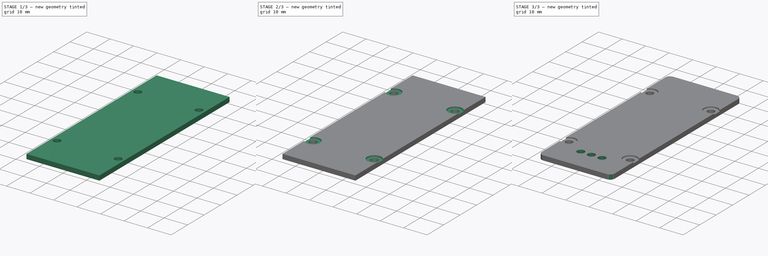
[diagram: build sequence overview — one tinted view per stage of 3, left to right]
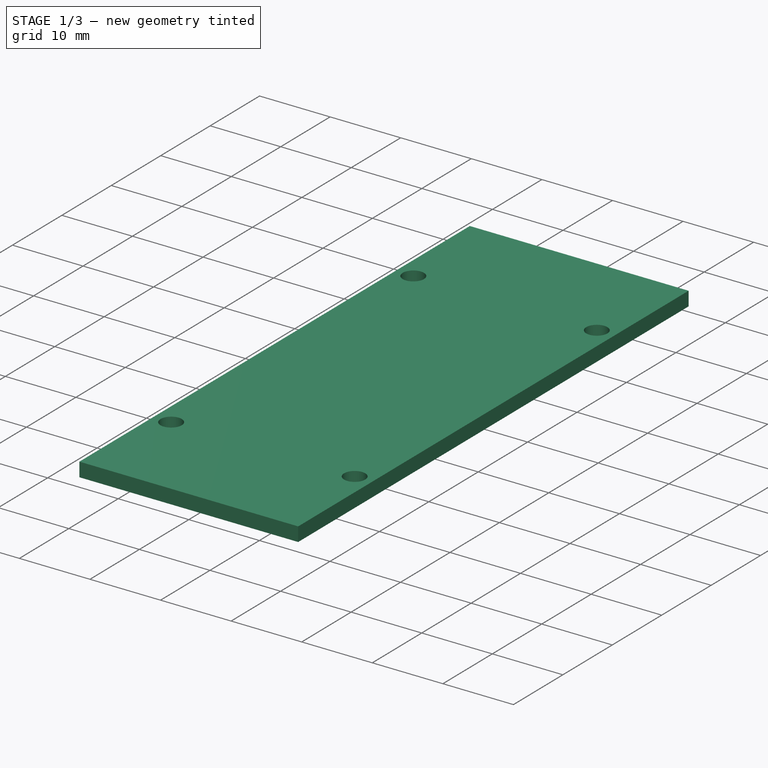
[diagram: stage 1 of 3 — iso view after this stage's code; geometry added in this stage tinted green]
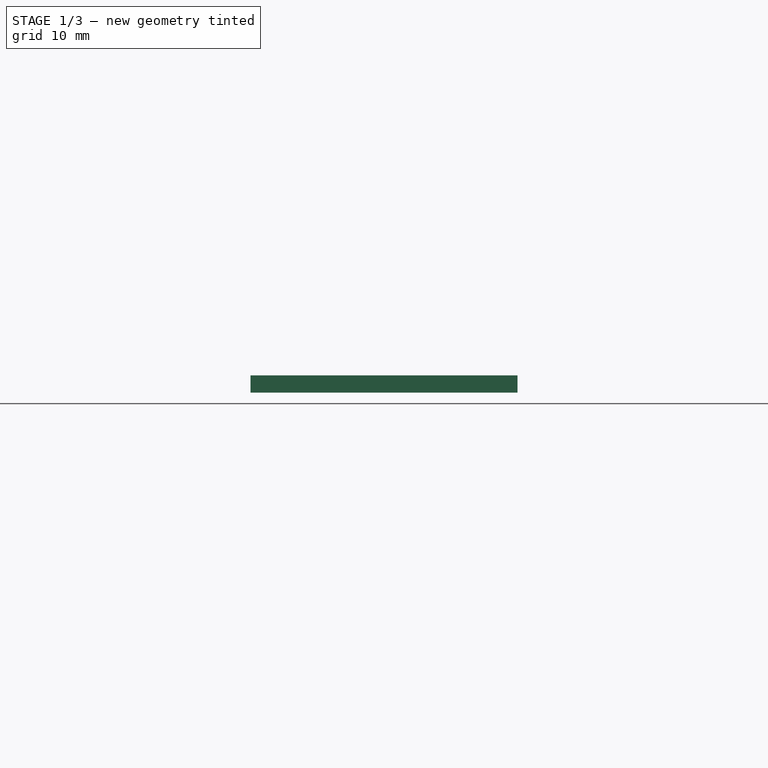
[diagram: stage 1 of 3 — front view after this stage's code; geometry added in this stage tinted green]
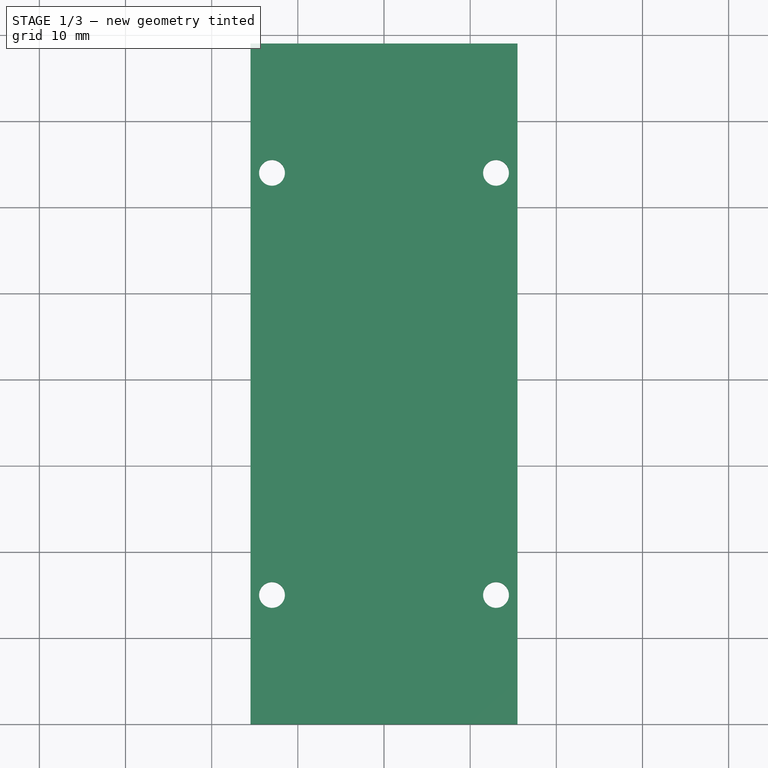
[diagram: stage 1 of 3 — top view after this stage's code; geometry added in this stage tinted green]
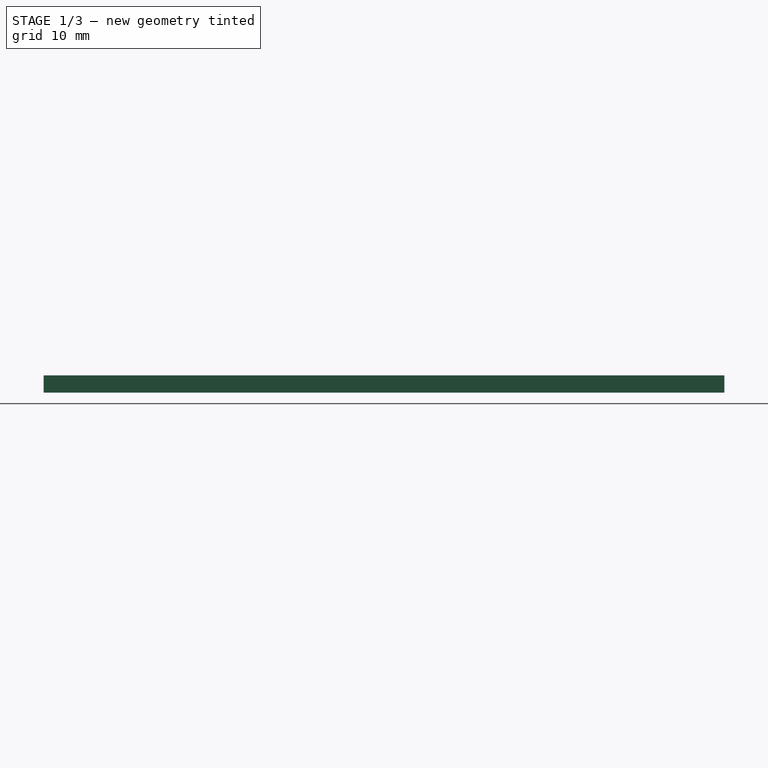
[diagram: stage 1 of 3 — right view after this stage's code; geometry added in this stage tinted green]
FCSTD DOCUMENT  (FreeCAD 0.18R13661 (Git))
Label: Top
License: All rights reserved
LicenseURL: http://en.wikipedia.org/wiki/All_rights_reserved
objects: Sketcher::SketchObject×4, PartDesign::Pocket×3, PartDesign::Pad×1, PartDesign::Plane×1, PartDesign::Fillet×1, PartDesign::Body×1
note: 15 computed .brp shape members not serialized (recipe doc carries the construction recipe); baked Part::Feature solids carry a one-line shape summary decoded from their .brp

FEATURE [Sketcher::SketchObject] Sketch  label="BaseSketch"
  MapMode = 5
  Support = -> [XY_Plane]
  sketch-geometry (14):
    g0: LineSegment StartX=0 StartY=0 StartZ=0 EndX=15.5 EndY=0 EndZ=0
    g1: LineSegment StartX=0 StartY=0 StartZ=0 EndX=-15.5 EndY=0 EndZ=0
    g2: LineSegment StartX=-15.5 StartY=0 StartZ=0 EndX=-15.5 EndY=39.5 EndZ=0
    g3: LineSegment StartX=-15.5 StartY=39.5 StartZ=0 EndX=-15.5 EndY=79 EndZ=0
    g4: LineSegment StartX=-15.5 StartY=79 StartZ=0 EndX=0 EndY=79 EndZ=0
    g5: LineSegment StartX=0 StartY=79 StartZ=0 EndX=15.5 EndY=79 EndZ=0
    g6: LineSegment StartX=15.5 StartY=79 StartZ=0 EndX=15.5 EndY=39.5 EndZ=0
    g7: LineSegment StartX=15.5 StartY=39.5 StartZ=0 EndX=15.5 EndY=0 EndZ=0
    g8: LineSegment [constr] StartX=-13.5 StartY=77 StartZ=0 EndX=13.5 EndY=77 EndZ=0
    g9: LineSegment [constr] StartX=13.5 StartY=77 StartZ=0 EndX=13.5 EndY=2 EndZ=0
    g10: LineSegment [constr] StartX=13.5 StartY=2 StartZ=0 EndX=-13.5 EndY=2 EndZ=0
    g11: LineSegment [constr] StartX=-13.5 StartY=2 StartZ=0 EndX=-13.5 EndY=77 EndZ=0
    g12: LineSegment [constr] StartX=-13.5 StartY=77 StartZ=0 EndX=-15.5 EndY=77 EndZ=0
    g13: LineSegment [constr] StartX=13.5 StartY=77 StartZ=0 EndX=15.5 EndY=77 EndZ=0
  constraints (41):
    c: Coincident(g0,g-1)
    c: Coincident(g1,g-1)
    c: Equal(g1,g0)
    c: Parallel(g0,g1)
    c: Horizontal(g0)
    c: Coincident(g2,g1)
    c: Perpendicular(g1,g2)
    c: Coincident(g3,g2)
    c: Equal(g3,g2)
    c: Parallel(g3,g2)
    c: Coincident(g4,g3)
    c: Coincident(g5,g4)
    c: Coincident(g6,g5)
    c: Coincident(g7,g6)
    c: Coincident(g7,g0)
    c: Equal(g4,g5)
    c: Equal(g7,g6)
    c: Parallel(g4,g5)
    c: Perpendicular(g3,g4)
    c: Parallel(g6,g7)
    c: Perpendicular(g6,g5)
    c: Coincident(g8,g9)
    c: Coincident(g9,g10)
    c: Coincident(g10,g11)
    c: Coincident(g11,g8)
    c: Parallel(g11,g3)
    c: Parallel(g8,g4)
    c: Parallel(g9,g6)
    c: Parallel(g1,g10)
    c: Coincident(g12,g8)
    c: PointOnObject(g12,g3)
    c: Coincident(g13,g8)
    c: PointOnObject(g13,g6)
    c: Distance(g12) = 2
    c: Distance(g3,g12) = 2
    c: Parallel(g12,g8)
    c: Equal(g12,g13)
    c: Parallel(g12,g13)
    c: Distance(g10) = 27
    c: Distance(g11) = 75
    c: Distance(g10,g1) = 2
FEATURE [PartDesign::Pad] Pad  label="BasePad"
  Length = 2
  Length2 = 100
  Profile = -> Sketch
  Type = 0
FEATURE [PartDesign::Plane] DatumPlane  label="SkrewsHolePlane"
  MapMode = 6
  Placement = pos=(0,0,2) rot=(0,0,1;3.14159rad)
  Support = -> [Pad]
FEATURE [Sketcher::SketchObject] Sketch001  label="ScrewsHoleSketch"
  ExternalGeometry = -> [Pad]
  MapMode = 5
  Placement = pos=(0,0,2) rot=(0,0,1;3.14159rad)
  Support = -> [DatumPlane]
  sketch-geometry (8):
    g0: LineSegment [constr] StartX=-15.5 StartY=-15 StartZ=0 EndX=-13 EndY=-15 EndZ=0
    g1: LineSegment [constr] StartX=15.5 StartY=-15 StartZ=0 EndX=13 EndY=-15 EndZ=0
    g2: Circle CenterX=-13 CenterY=-15 CenterZ=0 NormalX=0 NormalY=0 NormalZ=1 AngleXU=0 Radius=1.5
    g3: Circle CenterX=13 CenterY=-15 CenterZ=0 NormalX=0 NormalY=0 NormalZ=1 AngleXU=0 Radius=1.5
    g4: LineSegment [constr] StartX=-15.5 StartY=-64 StartZ=0 EndX=-13 EndY=-64 EndZ=0
    g5: LineSegment [constr] StartX=15.5 StartY=-64 StartZ=0 EndX=13 EndY=-64 EndZ=0
    g6: Circle CenterX=-13 CenterY=-64 CenterZ=0 NormalX=0 NormalY=0 NormalZ=1 AngleXU=0 Radius=1.5
    g7: Circle CenterX=13 CenterY=-64 CenterZ=0 NormalX=0 NormalY=0 NormalZ=1 AngleXU=0 Radius=1.5
  constraints (24):
    c: Equal(g0,g1)
    c: Perpendicular(g-6,g0)
    c: Parallel(g0,g1)
    c: Distance(g0) = 2.5
    c: Coincident(g2,g0)
    c: Coincident(g3,g1)
    c: Equal(g2,g3)
    c: Radius(g2) = 1.5
    c: PointOnObject(g0,g-6)
    c: PointOnObject(g1,g-3)
    c: Distance(g0,g-6) = 15
    c: Distance(g1,g-3) = 15
    c: PointOnObject(g4,g-5)
    c: PointOnObject(g5,g-4)
    c: Equal(g4,g5)
    c: Perpendicular(g-5,g4)
    c: Parallel(g4,g5)
    c: Distance(g4,g-5) = 15
    c: Distance(g5,g-4) = 15
    c: Distance(g4) = 2.5
    c: Coincident(g6,g4)
    c: Coincident(g7,g5)
    c: Equal(g6,g7)
    c: Radius(g6) = 1.5
FEATURE [PartDesign::Pocket] Pocket  label="ScrewsHolePocket"
  BaseFeature = -> Pad
  Length = 5
  Length2 = 100
  Profile = -> Sketch001
  Type = 1
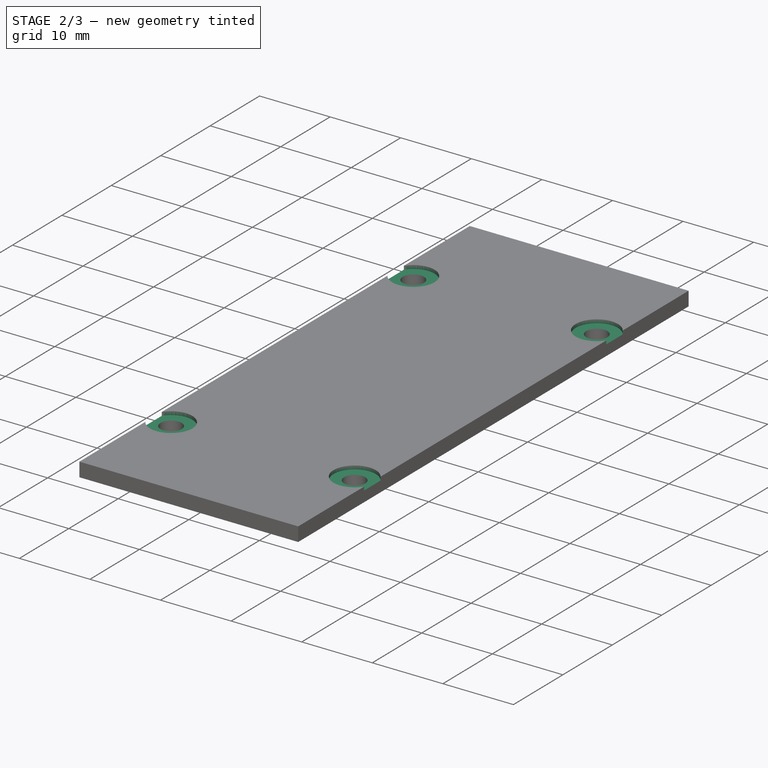
[diagram: stage 2 of 3 — iso view after this stage's code; geometry added in this stage tinted green]
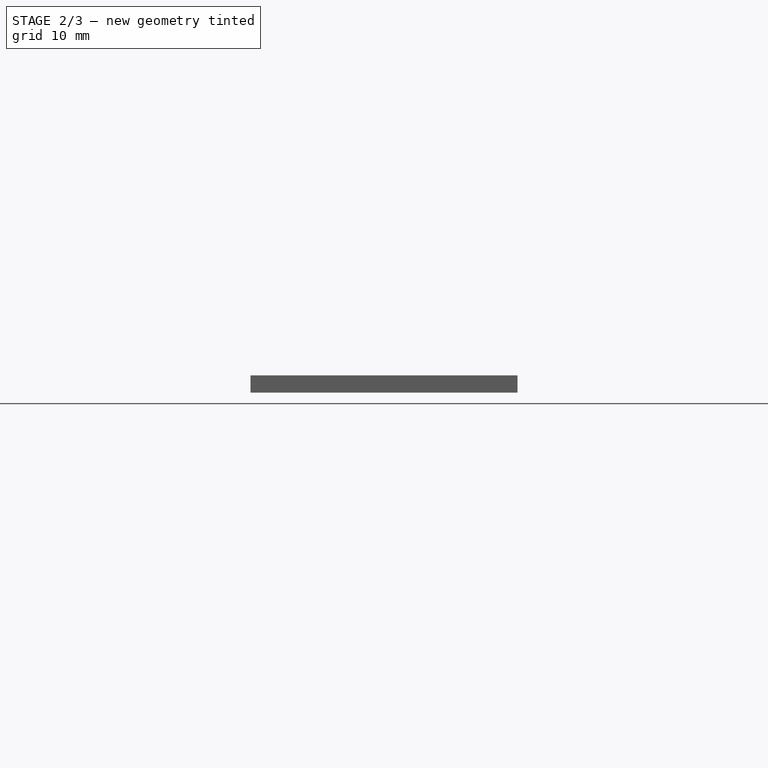
[diagram: stage 2 of 3 — front view after this stage's code; geometry added in this stage tinted green]
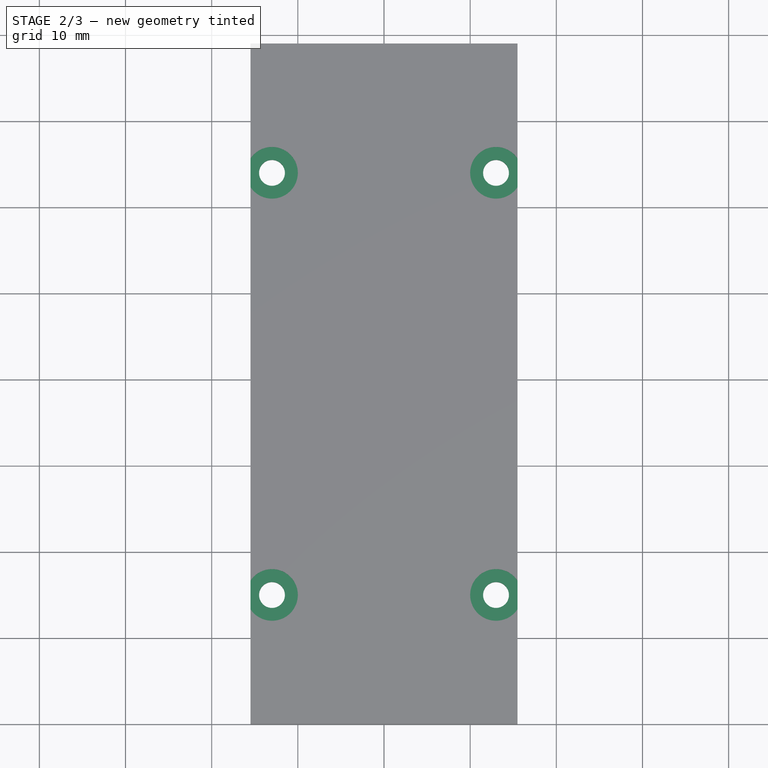
[diagram: stage 2 of 3 — top view after this stage's code; geometry added in this stage tinted green]
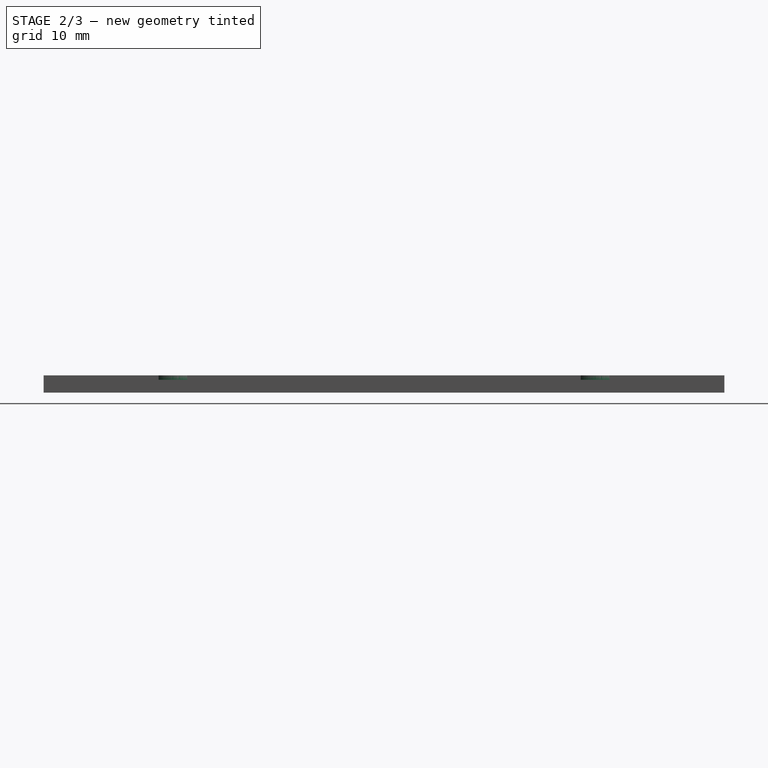
[diagram: stage 2 of 3 — right view after this stage's code; geometry added in this stage tinted green]
FEATURE [Sketcher::SketchObject] Sketch002  label="ScrewsHeadHoleSketch"
  ExternalGeometry = -> [Sketch001]
  MapMode = 5
  Placement = pos=(0,0,2) rot=(0,0,1;3.14159rad)
  Support = -> [DatumPlane]
  sketch-geometry (4):
    g0: Circle CenterX=-13 CenterY=-15 CenterZ=0 NormalX=0 NormalY=0 NormalZ=1 AngleXU=0 Radius=3
    g1: Circle CenterX=13 CenterY=-15 CenterZ=0 NormalX=0 NormalY=0 NormalZ=1 AngleXU=0 Radius=3
    g2: Circle CenterX=-13 CenterY=-64 CenterZ=0 NormalX=0 NormalY=0 NormalZ=1 AngleXU=0 Radius=3
    g3: Circle CenterX=13 CenterY=-64 CenterZ=0 NormalX=0 NormalY=0 NormalZ=1 AngleXU=0 Radius=3
  constraints (8):
    c: Coincident(g0,g-3)
    c: Coincident(g1,g-4)
    c: Radius(g0) = 3
    c: Coincident(g2,g-5)
    c: Coincident(g3,g-6)
    c: Equal(g2,g0)
    c: Equal(g0,g1)
    c: Equal(g1,g3)
FEATURE [PartDesign::Pocket] Pocket001  label="ScrewsHeadHolePocket"
  BaseFeature = -> Pocket
  Length = 0.5
  Length2 = 100
  Profile = -> Sketch002
  Type = 0
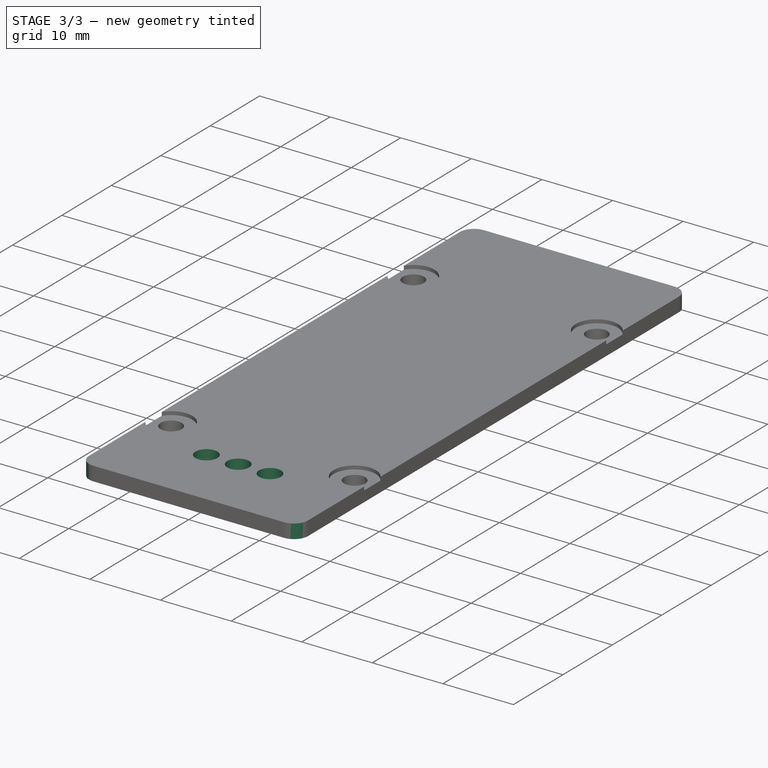
[diagram: stage 3 of 3 — iso view after this stage's code; geometry added in this stage tinted green]
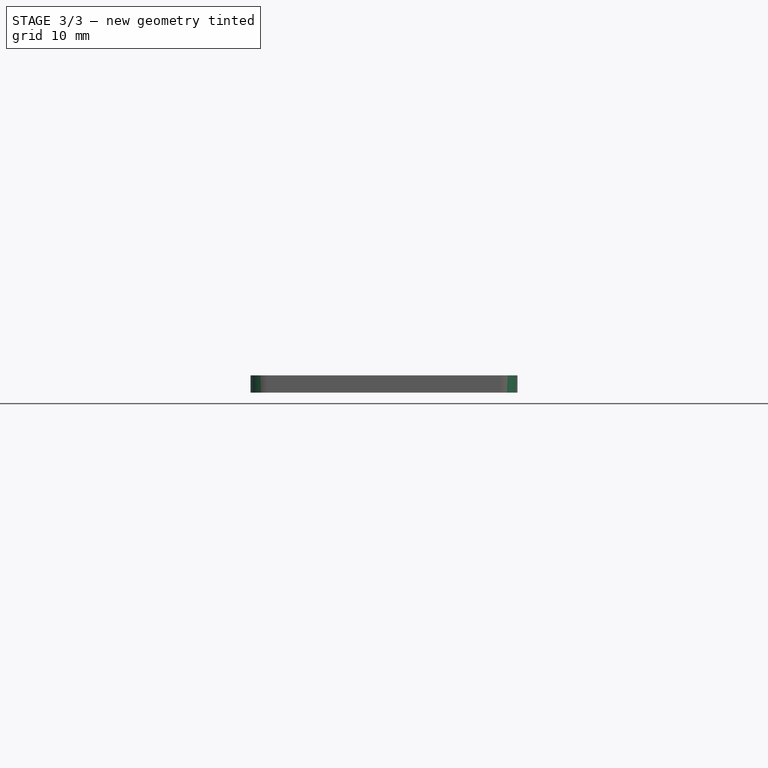
[diagram: stage 3 of 3 — front view after this stage's code; geometry added in this stage tinted green]
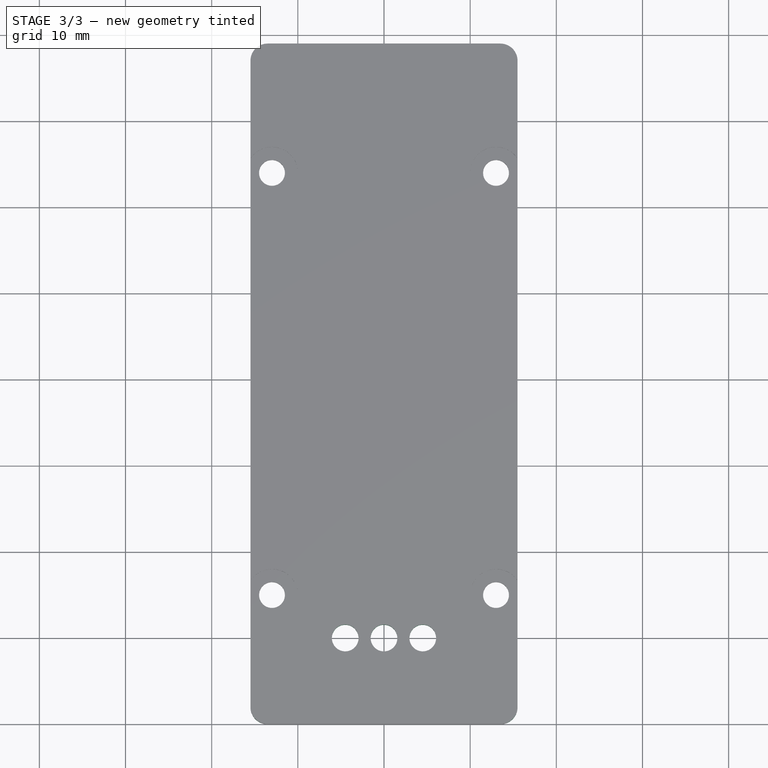
[diagram: stage 3 of 3 — top view after this stage's code; geometry added in this stage tinted green]
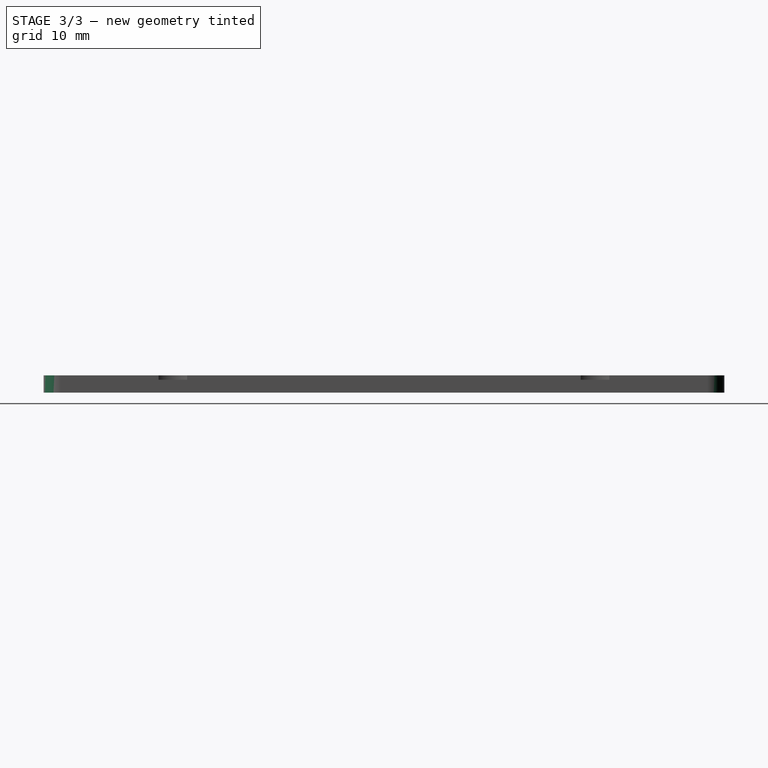
[diagram: stage 3 of 3 — right view after this stage's code; geometry added in this stage tinted green]
FEATURE [Sketcher::SketchObject] Sketch003  label="LedsHoleSketch"
  MapMode = 5
  Placement = pos=(0,0,2) rot=(0,0,1;3.14159rad)
  Support = -> [DatumPlane]
  sketch-geometry (6):
    g0: LineSegment [constr] StartX=0 StartY=0 StartZ=0 EndX=0 EndY=-10 EndZ=0
    g1: LineSegment [constr] StartX=0 StartY=-10 StartZ=0 EndX=-4.5 EndY=-10 EndZ=0
    g2: LineSegment [constr] StartX=0 StartY=-10 StartZ=0 EndX=4.5 EndY=-10 EndZ=0
    g3: Circle CenterX=0 CenterY=-10 CenterZ=0 NormalX=0 NormalY=0 NormalZ=1 AngleXU=0 Radius=1.55
    g4: Circle CenterX=-4.5 CenterY=-10 CenterZ=0 NormalX=0 NormalY=0 NormalZ=1 AngleXU=0 Radius=1.55
    g5: Circle CenterX=4.5 CenterY=-10 CenterZ=0 NormalX=0 NormalY=0 NormalZ=1 AngleXU=0 Radius=1.55
  constraints (15):
    c: Coincident(g0,g-1)
    c: Perpendicular(g-1,g0)
    c: Distance(g0) = 10
    c: Coincident(g1,g0)
    c: Coincident(g2,g0)
    c: Equal(g2,g1)
    c: Parallel(g2,g1)
    c: Perpendicular(g0,g1)
    c: Coincident(g3,g0)
    c: Radius(g3) = 1.55
    c: Distance(g1) = 4.5
    c: Coincident(g4,g1)
    c: Coincident(g5,g2)
    c: Equal(g4,g3)
    c: Equal(g3,g5)
FEATURE [PartDesign::Pocket] Pocket002  label="LedsHolePocket"
  BaseFeature = -> Pocket001
  Length = 5
  Length2 = 100
  Profile = -> Sketch003
  Type = 1
FEATURE [PartDesign::Fillet] Fillet
  Base = -> Pocket002 [Edge55,Edge56,Edge5,Edge2]
  BaseFeature = -> Pocket002
  Radius = 2
FEATURE [PartDesign::Body] Body  label="CaseBody"
  Group = -> [Sketch,Pad,DatumPlane,Sketch001,Pocket,Sketch002,Pocket001,Sketch003,Pocket002,Fillet]
  Origin = -> Origin
  Tip = -> Fillet
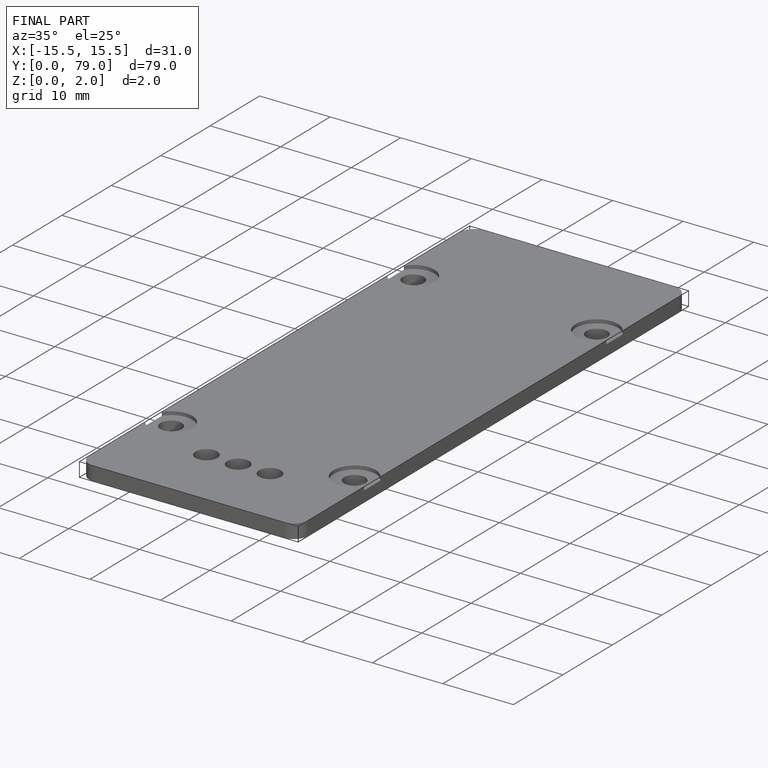
[diagram: finished part — iso view with bounding-box wireframe]
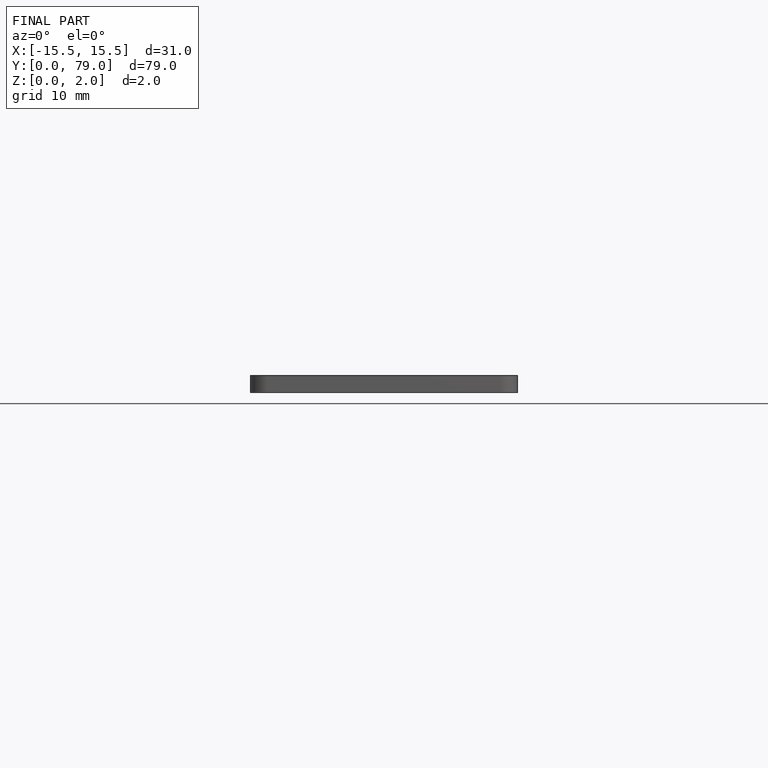
[diagram: finished part — front view with bounding-box wireframe]
